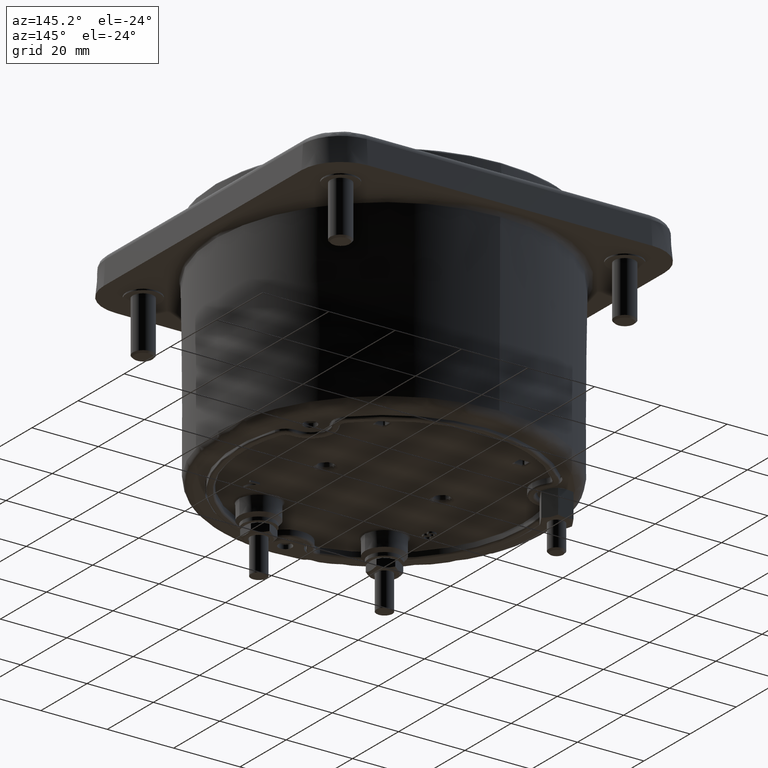
[diagram: clean part render]
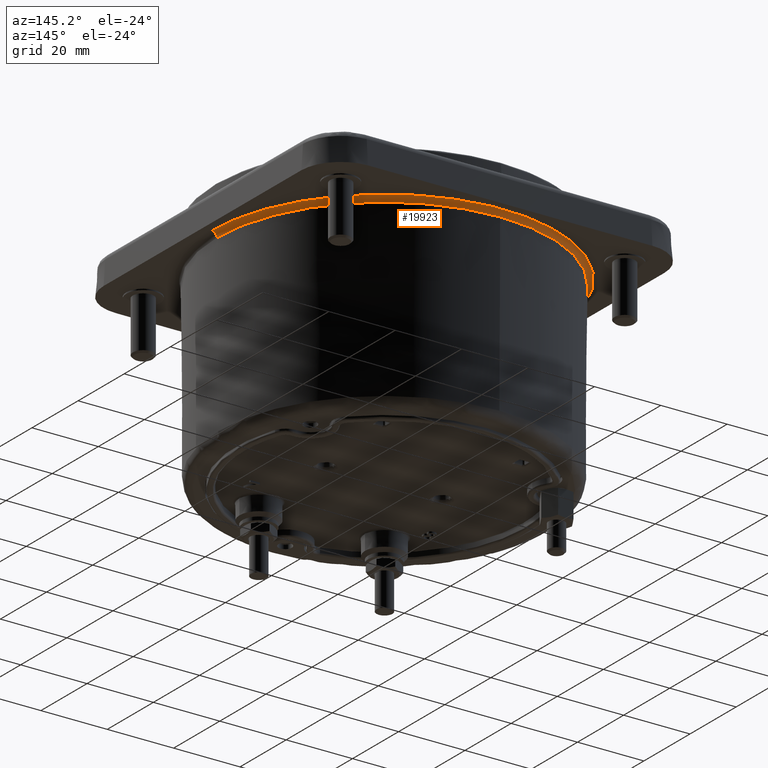
[diagram: same view with one face highlighted and labeled with its STEP entity id]
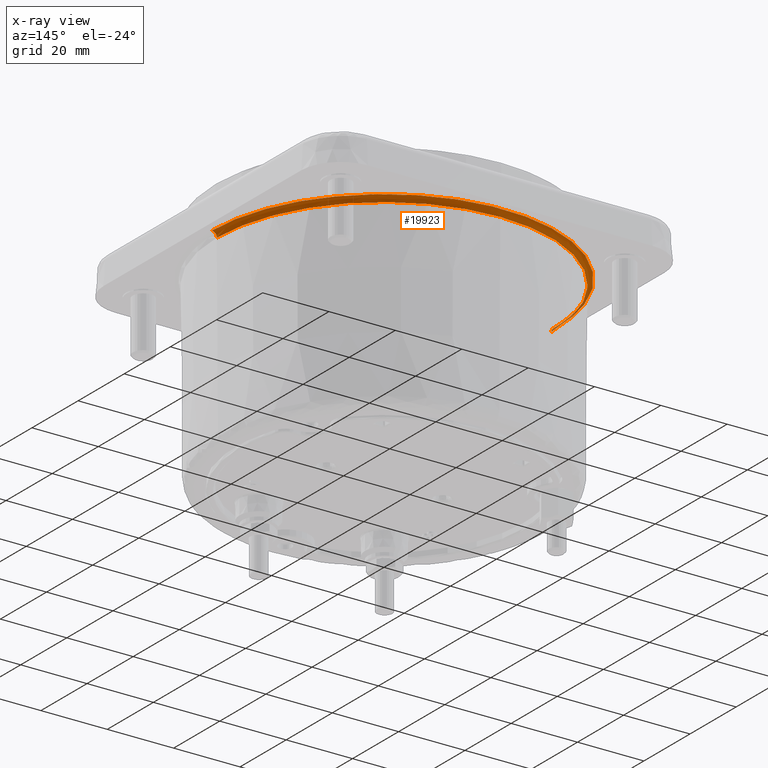
[diagram: x-ray of the same camera — body ghosted, the highlighted face saturated]
A machine part, auxiliary view. The second image highlights one B-rep face of the part: STEP entity #19923.
The next image is the same camera in x-ray: the body ghosted, the highlighted face saturated — about 2% of this face is hidden behind the body in this view.
In plain terms, the highlighted face is a freeform B-spline surface patch.
Its self-contained STEP definition (entity closure, byte-faithful):
#49 = CARTESIAN_POINT ( 'NONE',  ( -2.008598685417853691, 0.3726887875046700493, 2.070110236220472189 ) ) ;
#59 = DIRECTION ( 'NONE',  ( -1.000000000000000000, -6.506283845020274466E-10, 0.000000000000000000 ) ) ;
#111 = CARTESIAN_POINT ( 'NONE',  ( -2.008485858200862673, 4.016971709809507907, 2.070110236220473077 ) ) ;
#149 = CARTESIAN_POINT ( 'NONE',  ( -1.896255371955353874, 0.7599903085829402549, 2.070110236220472189 ) ) ;
#249 = CARTESIAN_POINT ( 'NONE',  ( 2.026184992767981807, 0.2639833657178906057, 2.070110236220472189 ) ) ;
#420 = ORIENTED_EDGE ( 'NONE', *, *, #12275, .F. ) ;
#469 = CARTESIAN_POINT ( 'NONE',  ( 1.711088321330193063, 1.116040419668461237, 2.070110236220472189 ) ) ;
#546 = CARTESIAN_POINT ( 'NONE',  ( -2.042881472386144370, 4.085762938067176719, 2.070110236220472633 ) ) ;
#582 = CARTESIAN_POINT ( 'NONE',  ( 2.008964654954902507, 0.3707111310162305440, 2.070110236220472633 ) ) ;
#639 = VERTEX_POINT ( 'NONE', #20257 ) ;
#791 = CARTESIAN_POINT ( 'NONE',  ( -0.3678886186264974101, 2.009483410134052850, 2.070110236220472189 ) ) ;
#888 = CARTESIAN_POINT ( 'NONE',  ( -1.983827896406448188, -1.309943466930820863E-09, 2.011482268730736322 ) ) ;
#1185 = CARTESIAN_POINT ( 'NONE',  ( 1.130765448197810219, 1.701402250908114588, 2.070110236220472189 ) ) ;
#1375 = CARTESIAN_POINT ( 'NONE',  ( -1.092514872299909623, 1.726242185401335227, 2.070110236220472189 ) ) ;
#1481 = CARTESIAN_POINT ( 'NONE',  ( -1.110653324257439234, 1.714590005561490216, 2.070110236220472189 ) ) ;
#1801 = CARTESIAN_POINT ( 'NONE',  ( -1.923832779440136198, 0.6903791625160491385, 2.070110236220472189 ) ) ;
#1812 = CARTESIAN_POINT ( 'NONE',  ( -0.7442685582425531132, 1.902480896312931602, 2.070110236220472189 ) ) ;
#2006 = CARTESIAN_POINT ( 'NONE',  ( 1.900241300414043266, 0.7499681759425160799, 2.070110236220472189 ) ) ;
#2460 = CIRCLE ( 'NONE', #4916, 1.983827896406452851 ) ;
#2820 = CARTESIAN_POINT ( 'NONE',  ( 0.9710378116155181649, 1.799681934351596846, 2.070110236220472633 ) ) ;
#2971 = CIRCLE ( 'NONE', #6123, 0.05905511811023627516 ) ;
#3008 = CIRCLE ( 'NONE', #5805, 0.05905511811023627516 ) ;
#3012 = ORIENTED_EDGE ( 'NONE', *, *, #21252, .F. ) ;
#3015 = CARTESIAN_POINT ( 'NONE',  ( -1.701402250908744973, 1.130765448196786371, 2.070110236220473077 ) ) ;
#3023 = CARTESIAN_POINT ( 'NONE',  ( 1.219175707342406101, 1.639883210600492802, 2.070110236220472189 ) ) ;
#3159 = CARTESIAN_POINT ( 'NONE',  ( 0.1249387674007510635, 2.042880192836613595, 2.070110236220472189 ) ) ;
#3231 = CARTESIAN_POINT ( 'NONE',  ( -2.007446990985487734, 0.3788520813345559457, 2.070110236220471744 ) ) ;
#3242 = CARTESIAN_POINT ( 'NONE',  ( 0.7559844347400698217, 1.897855857671748803, 2.070110236220472633 ) ) ;
#3250 = EDGE_CURVE ( 'NONE', #13108, #639, #2460, .T. ) ;
#3344 = CARTESIAN_POINT ( 'NONE',  ( -0.6978737373666035193, 1.920113334218456425, 2.070110236220472633 ) ) ;
#3432 = CARTESIAN_POINT ( 'NONE',  ( -1.105221622685764959, 1.718104688079279185, 2.070110236220473077 ) ) ;
#3539 = CARTESIAN_POINT ( 'NONE',  ( 1.714590005561250186, 1.110653324258058738, 2.070110236220471744 ) ) ;
#3639 = EDGE_CURVE ( 'NONE', #6227, #639, #2971, .T. ) ;
#3645 = CARTESIAN_POINT ( 'NONE',  ( 1.974016218242611531, 0.5332552053223664768, 2.070110236220472189 ) ) ;
#3721 = CARTESIAN_POINT ( 'NONE',  ( 2.008485855548417298, 1.306775885527379837E-09, 2.070110236220473077 ) ) ;
#3756 = CARTESIAN_POINT ( 'NONE',  ( 1.742263465832802227, 1.066970251324247831, 2.070110236220472189 ) ) ;
#3829 = CARTESIAN_POINT ( 'NONE',  ( -2.042881469688265117, -1.348937260100741802E-09, 2.070110236220472633 ) ) ;
#3866 = CARTESIAN_POINT ( 'NONE',  ( 1.939430170090475691, 0.6433872527954787035, 2.070110236220472189 ) ) ;
#4198 = DIRECTION ( 'NONE',  ( 1.000000000000000000, 6.215758234642771035E-10, 1.377058966966231985E-15 ) ) ;
#4240 =( BOUNDED_SURFACE ( )  B_SPLINE_SURFACE ( 3, 3, ( 
 ( #3829, #546, #11898, #10045 ),
 ( #5044, #111, #18630, #3721 ),
 ( #18411, #10475, #6794, #10255 ),
 ( #16973, #8629, #7004, #13445 ) ),
 .UNSPECIFIED., .F., .F., .F. ) 
 B_SPLINE_SURFACE_WITH_KNOTS ( ( 4, 4 ),
 ( 4, 4 ),
 ( 0.000000000000000000, 1.000000000000000000 ),
 ( 0.000000000000000000, 1.000000000000000000 ),
 .UNSPECIFIED. ) 
 GEOMETRIC_REPRESENTATION_ITEM ( )  RATIONAL_B_SPLINE_SURFACE ( (
 ( 1.000000000000000000, 0.3333333333301046753, 0.3333333333301046753, 1.000000000000000000),
 ( 0.8064396365958953483, 0.2688132121960280507, 0.2688132121960280507, 0.8064396365958953483),
 ( 0.8064396365958953483, 0.2688132121960280507, 0.2688132121960280507, 0.8064396365958953483),
 ( 1.000000000000000000, 0.3333333333301046753, 0.3333333333301046753, 1.000000000000000000) ) ) 
 REPRESENTATION_ITEM ( '' )  SURFACE ( )  );
#4525 = CARTESIAN_POINT ( 'NONE',  ( 2.042881469688272222, 1.329156158074610405E-09, 2.070110236220472189 ) ) ;
#4565 = CARTESIAN_POINT ( 'NONE',  ( 1.121571604574870262, 1.707467909705373987, 2.070110236220473077 ) ) ;
#4694 = CARTESIAN_POINT ( 'NONE',  ( 0.2488762166883521365, 2.031511808131441388, 2.070110236220473077 ) ) ;
#4759 = CARTESIAN_POINT ( 'NONE',  ( -1.564954769524254052, 1.316454797502487839, 2.070110236220473077 ) ) ;
#4869 = CARTESIAN_POINT ( 'NONE',  ( -1.893845591454620836, 0.7659944184694260638, 2.070110236220473077 ) ) ;
#4915 = CARTESIAN_POINT ( 'NONE',  ( 0.3737647796329262584, 2.008398766474830843, 2.070110236220473077 ) ) ;
#4916 = AXIS2_PLACEMENT_3D ( 'NONE', #6859, #8489, #4198 ) ;
#5044 = CARTESIAN_POINT ( 'NONE',  ( -2.008485855548407528, -1.326225417460476470E-09, 2.070110236220473077 ) ) ;
#5086 = CARTESIAN_POINT ( 'NONE',  ( -1.747656180646432800, 1.060108662972744753, 2.070110236220473077 ) ) ;
#5115 = VERTEX_POINT ( 'NONE', #7357 ) ;
#5402 = CARTESIAN_POINT ( 'NONE',  ( 2.013594818917836093, 0.3448347633410340785, 2.070110236220473077 ) ) ;
#5516 = CARTESIAN_POINT ( 'NONE',  ( 1.902480896313037517, 0.7442685582423163027, 2.070110236220472189 ) ) ;
#5660 = ORIENTED_EDGE ( 'NONE', *, *, #14568, .F. ) ;
#5805 = AXIS2_PLACEMENT_3D ( 'NONE', #10101, #8576, #59 ) ;
#5919 = DIRECTION ( 'NONE',  ( 6.506285069667078454E-10, -1.000000000000000000, 0.000000000000000000 ) ) ;
#5947 = CARTESIAN_POINT ( 'NONE',  ( -0.2639833657265798772, 2.026184992766906223, 2.070110236220472189 ) ) ;
#6123 = AXIS2_PLACEMENT_3D ( 'NONE', #7669, #5919, #17643 ) ;
#6139 = CARTESIAN_POINT ( 'NONE',  ( 0.3859691339169316060, 2.006096597241254997, 2.070110236220472189 ) ) ;
#6161 = CIRCLE ( 'NONE', #13811, 1.983827896406452851 ) ;
#6227 = VERTEX_POINT ( 'NONE', #4525 ) ;
#6345 = CARTESIAN_POINT ( 'NONE',  ( 0.3788520813356723305, 2.007446990985192414, 2.070110236220472189 ) ) ;
#6556 = CARTESIAN_POINT ( 'NONE',  ( 0.3757999609763399418, 2.008018959206292475, 2.070110236220472633 ) ) ;
#6622 = CARTESIAN_POINT ( 'NONE',  ( -1.344819891864121653, 1.544248719458508168, 2.070110236220472189 ) ) ;
#6732 = CARTESIAN_POINT ( 'NONE',  ( -2.042881469769566749, 0.1249596658312170094, 2.070110236220472189 ) ) ;
#6794 = CARTESIAN_POINT ( 'NONE',  ( 1.984076680185401509, 3.968153366863694576, 2.045876983112523195 ) ) ;
#6836 = CARTESIAN_POINT ( 'NONE',  ( -1.799681934356939239, 0.9710378116077497124, 2.070110236220472189 ) ) ;
#6843 = CARTESIAN_POINT ( 'NONE',  ( 0.7799711020587158927, 1.888159406803889162, 2.070110236220471744 ) ) ;
#6859 = CARTESIAN_POINT ( 'NONE',  ( 4.755600987370747928E-15, 2.237929876409763545E-15, 2.011482268730736322 ) ) ;
#6933 = CARTESIAN_POINT ( 'NONE',  ( 2.011224428577082612, 0.3582853737923294424, 2.070110236220472189 ) ) ;
#6992 = ORIENTED_EDGE ( 'NONE', *, *, #3639, .T. ) ;
#7004 = CARTESIAN_POINT ( 'NONE',  ( 1.983827893824907651, 3.967655794141890624, 2.011482268730736322 ) ) ;
#7262 = CARTESIAN_POINT ( 'NONE',  ( 1.900968610835624517, 0.7481225039804052512, 2.070110236220472189 ) ) ;
#7357 = CARTESIAN_POINT ( 'NONE',  ( -2.042881469688264673, -1.329153877629970610E-09, 2.070110236220472189 ) ) ;
#7461 = CARTESIAN_POINT ( 'NONE',  ( -0.3707111310161931850, 2.008964654954908724, 2.070110236220472189 ) ) ;
#7669 = CARTESIAN_POINT ( 'NONE',  ( 2.042881469688273555, 1.329159158463107903E-09, 2.011055118110236517 ) ) ;
#7845 = CARTESIAN_POINT ( 'NONE',  ( 0.8077928446445483690, 1.876533583579392150, 2.070110236220472189 ) ) ;
#7978 = CARTESIAN_POINT ( 'NONE',  ( 0.4285437248700156299, 1.997551800392516785, 2.070110236220472633 ) ) ;
#8053 = CARTESIAN_POINT ( 'NONE',  ( 1.143583545518305877, 1.692844864900662660, 2.070110236220472189 ) ) ;
#8150 = CARTESIAN_POINT ( 'NONE',  ( -1.897855857671926882, 0.7559844347397906006, 2.070110236220472189 ) ) ;
#8192 = CARTESIAN_POINT ( 'NONE',  ( 0.4849692473822045380, 1.984978912900581927, 2.070110236220472189 ) ) ;
#8360 = CARTESIAN_POINT ( 'NONE',  ( -2.031513085348501502, 0.2488693151521731151, 2.070110236220472633 ) ) ;
#8371 = CARTESIAN_POINT ( 'NONE',  ( -0.6433872527980785128, 1.939430170089417649, 2.070110236220472189 ) ) ;
#8467 = CARTESIAN_POINT ( 'NONE',  ( -1.066970251320402019, 1.742263465834327452, 2.070110236220472189 ) ) ;
#8489 = DIRECTION ( 'NONE',  ( -0.000000000000000000, -0.000000000000000000, -1.000000000000000000 ) ) ;
#8576 = DIRECTION ( 'NONE',  ( -6.506283845020279635E-10, 1.000000000000000000, 0.000000000000000000 ) ) ;
#8629 = CARTESIAN_POINT ( 'NONE',  ( -1.983827899026250563, 3.967655791541214949, 2.011482268730736322 ) ) ;
#8662 = CARTESIAN_POINT ( 'NONE',  ( 1.874038972726748797, 0.8161558320118241783, 2.070110236220473077 ) ) ;
#8775 = CARTESIAN_POINT ( 'NONE',  ( 2.009483410134108805, 0.3678886186260942881, 2.070110236220472189 ) ) ;
#8876 = CARTESIAN_POINT ( 'NONE',  ( 1.544248719448939822, 1.344819891870079998, 2.070110236220473077 ) ) ;
#8888 = CARTESIAN_POINT ( 'NONE',  ( -0.7499681759426658489, 1.900241300413973988, 2.070110236220472189 ) ) ;
#9073 = CARTESIAN_POINT ( 'NONE',  ( -0.5332552053258344804, 1.974016218241201770, 2.070110236220472633 ) ) ;
#9474 = CARTESIAN_POINT ( 'NONE',  ( 0.8629098314527804403, 1.852268121433132686, 2.070110236220472189 ) ) ;
#9667 = CARTESIAN_POINT ( 'NONE',  ( -2.006096597241845636, 0.3859691339147403033, 2.070110236220472189 ) ) ;
#9878 = CARTESIAN_POINT ( 'NONE',  ( -1.707467909705557174, 1.121571604574564729, 2.070110236220472189 ) ) ;
#10045 = CARTESIAN_POINT ( 'NONE',  ( 2.042881469688274443, 1.329154575437857217E-09, 2.070110236220472633 ) ) ;
#10085 = CARTESIAN_POINT ( 'NONE',  ( -1.675499044565825546, 1.169031679855782269, 2.070110236220472189 ) ) ;
#10101 = CARTESIAN_POINT ( 'NONE',  ( -2.042881469688263785, -1.329154432422529730E-09, 2.011055118110236517 ) ) ;
#10255 = CARTESIAN_POINT ( 'NONE',  ( 1.984076682767186517, 1.290894636644271632E-09, 2.045876983112522751 ) ) ;
#10294 = CARTESIAN_POINT ( 'NONE',  ( 1.909948963334545891, 0.7249720948581591662, 2.070110236220472189 ) ) ;
#10401 = CARTESIAN_POINT ( 'NONE',  ( 2.042881469688272222, 1.329156158074610405E-09, 2.070110236220472189 ) ) ;
#10475 = CARTESIAN_POINT ( 'NONE',  ( -1.984076685387397454, 3.968153364262690275, 2.045876983112523195 ) ) ;
#10513 = CARTESIAN_POINT ( 'NONE',  ( 1.394678649431126738, 1.494393066040117679, 2.070110236220472189 ) ) ;
#10658 = VERTEX_POINT ( 'NONE', #888 ) ;
#10949 = CARTESIAN_POINT ( 'NONE',  ( -0.3179124374555990507, 2.018102432713798411, 2.070110236220472189 ) ) ;
#11114 = EDGE_LOOP ( 'NONE', ( #5660, #6992, #19881, #420, #3012 ) ) ;
#11135 = CARTESIAN_POINT ( 'NONE',  ( 0.3726887335864224604, 2.008598695396123013, 2.070110236220472189 ) ) ;
#11243 = CARTESIAN_POINT ( 'NONE',  ( 0.6903791625263809850, 1.923832779437304907, 2.070110236220472633 ) ) ;
#11296 = CARTESIAN_POINT ( 'NONE',  ( -2.042881469688264673, -1.329153877629970610E-09, 2.070110236220472189 ) ) ;
#11410 = CARTESIAN_POINT ( 'NONE',  ( 1.119690164146124323, 1.708702197063316053, 2.070110236220473077 ) ) ;
#11659 = CARTESIAN_POINT ( 'NONE',  ( -0.06246938569410279141, 2.042882108114094653, 2.070110236220472633 ) ) ;
#11724 = CARTESIAN_POINT ( 'NONE',  ( -1.116040419668409944, 1.711088321330176631, 2.070110236220472189 ) ) ;
#11823 = CARTESIAN_POINT ( 'NONE',  ( 2.018102432714430794, 0.3179124374505328254, 2.070110236220472189 ) ) ;
#11898 = CARTESIAN_POINT ( 'NONE',  ( 2.042881467029969755, 4.085762940745269134, 2.070110236220472633 ) ) ;
#12040 = CARTESIAN_POINT ( 'NONE',  ( 1.773291169853209226, 1.015356528536791814, 2.070110236220471744 ) ) ;
#12092 = DIRECTION ( 'NONE',  ( -0.000000000000000000, -0.000000000000000000, -1.000000000000000000 ) ) ;
#12115 = FACE_OUTER_BOUND ( 'NONE', #11114, .T. ) ;
#12148 = CARTESIAN_POINT ( 'NONE',  ( 2.042882108114913109, 0.06246938568748307968, 2.070110236220471744 ) ) ;
#12275 = EDGE_CURVE ( 'NONE', #10658, #13108, #6161, .T. ) ;
#12703 = CARTESIAN_POINT ( 'NONE',  ( 5.023682837251794677E-15, 1.983827896406455071, 2.011482268730736322 ) ) ;
#13054 = CARTESIAN_POINT ( 'NONE',  ( -1.114271336728845485, 1.712240843068414620, 2.070110236220472189 ) ) ;
#13108 = VERTEX_POINT ( 'NONE', #12703 ) ;
#13165 = CARTESIAN_POINT ( 'NONE',  ( -1.708702197063218353, 1.119690164146253775, 2.070110236220472189 ) ) ;
#13272 = CARTESIAN_POINT ( 'NONE',  ( -2.008018959206457676, 0.3757999609756976223, 2.070110236220472189 ) ) ;
#13378 = CARTESIAN_POINT ( 'NONE',  ( -1.639883210604393682, 1.219175707336111358, 2.070110236220472633 ) ) ;
#13445 = CARTESIAN_POINT ( 'NONE',  ( 1.983827896406368252, 1.290732769703909130E-09, 2.011482268730736767 ) ) ;
#13486 = CARTESIAN_POINT ( 'NONE',  ( -1.984978912904302062, 0.4849692473686476601, 2.070110236220472189 ) ) ;
#13811 = AXIS2_PLACEMENT_3D ( 'NONE', #17166, #12092, #18926 ) ;
#14358 = CARTESIAN_POINT ( 'NONE',  ( -0.3582853737937266025, 2.011224428576901424, 2.070110236220472189 ) ) ;
#14470 = CARTESIAN_POINT ( 'NONE',  ( -0.3650080408951944522, 2.010010087546000079, 2.070110236220471744 ) ) ;
#14568 = EDGE_CURVE ( 'NONE', #6227, #5115, #17927, .T. ) ;
#14710 = CARTESIAN_POINT ( 'NONE',  ( -1.692844864901881685, 1.143583545516333233, 2.070110236220472633 ) ) ;
#14928 = CARTESIAN_POINT ( 'NONE',  ( -1.997551800394681276, 0.4285437248621059569, 2.070110236220471744 ) ) ;
#15039 = CARTESIAN_POINT ( 'NONE',  ( -2.003332604842373410, 0.4001849927131438389, 2.070110236220472189 ) ) ;
#15145 = CARTESIAN_POINT ( 'NONE',  ( -1.494393066043087526, 1.394678649426327466, 2.070110236220472189 ) ) ;
#15349 = CARTESIAN_POINT ( 'NONE',  ( 1.831287150517390216, 0.9100311596338412912, 2.070110236220472189 ) ) ;
#15466 = CARTESIAN_POINT ( 'NONE',  ( 1.718104688078858855, 1.105221622686833438, 2.070110236220472633 ) ) ;
#15778 = CARTESIAN_POINT ( 'NONE',  ( -0.3698088781557697380, 2.009130903961297232, 2.070110236220472189 ) ) ;
#16052 = CARTESIAN_POINT ( 'NONE',  ( 1.060108662977189420, 1.747656180643378354, 2.070110236220472189 ) ) ;
#16367 = CARTESIAN_POINT ( 'NONE',  ( -0.9100311596250574286, 1.831287150520885865, 2.070110236220472189 ) ) ;
#16409 = CARTESIAN_POINT ( 'NONE',  ( 0.4001849927173825039, 2.003332604841217446, 2.070110236220473077 ) ) ;
#16579 = CARTESIAN_POINT ( 'NONE',  ( -1.015356528530201752, 1.773291169855829130, 2.070110236220472189 ) ) ;
#16690 = CARTESIAN_POINT ( 'NONE',  ( -2.008398766474908559, 0.3737647796326012961, 2.070110236220472189 ) ) ;
#16798 = CARTESIAN_POINT ( 'NONE',  ( -1.876533583581720510, 0.8077928446411455354, 2.070110236220472189 ) ) ;
#16811 = CARTESIAN_POINT ( 'NONE',  ( -0.7384850524071741029, 1.904740289654892615, 2.070110236220472189 ) ) ;
#16901 = CARTESIAN_POINT ( 'NONE',  ( 1.712240843068295382, 1.114271336729161677, 2.070110236220472189 ) ) ;
#16913 = CARTESIAN_POINT ( 'NONE',  ( 0.7659944184703710857, 1.893845591453981569, 2.070110236220472189 ) ) ;
#16973 = CARTESIAN_POINT ( 'NONE',  ( -1.983827896406358704, -1.309943466930761926E-09, 2.011482268730736767 ) ) ;
#17009 = CARTESIAN_POINT ( 'NONE',  ( 2.038619442716532504, 0.1557875424460390956, 2.070110236220472189 ) ) ;
#17116 = CARTESIAN_POINT ( 'NONE',  ( 1.904740289655071139, 0.7384850524067589905, 2.070110236220472189 ) ) ;
#17166 = CARTESIAN_POINT ( 'NONE',  ( 4.755600987370747928E-15, 2.237929876409763545E-15, 2.011482268730736322 ) ) ;
#17643 = DIRECTION ( 'NONE',  ( 1.000000000000000000, 6.506285069667073284E-10, 0.000000000000000000 ) ) ;
#17669 = CARTESIAN_POINT ( 'NONE',  ( -0.3448347633437446325, 2.013594818917495921, 2.070110236220471744 ) ) ;
#17788 = CARTESIAN_POINT ( 'NONE',  ( -0.1557875424576269097, 2.038619442715101204, 2.070110236220473077 ) ) ;
#17829 = CARTESIAN_POINT ( 'NONE',  ( 1.316454797510877794, 1.564954769519051769, 2.070110236220472189 ) ) ;
#17927 = B_SPLINE_CURVE_WITH_KNOTS ( 'NONE', 3,
 ( #10401, #12148, #17009, #249, #11823, #5402, #6933, #20298, #8775, #20517, #582, #18663, #3645, #3866, #18773, #10294, #17116, #5516, #7262, #2006, #8662, #15349, #12040, #3756, #18558, #15466, #3539, #16901, #469, #18879, #8876, #10513, #17829, #3023, #19682, #8053, #1185, #19780, #4565, #11410, #16052, #2820, #9474, #7845, #6843, #16913, #18248, #3242, #21559, #11243, #17971, #8192, #7978, #16409, #6139, #6345, #6556, #4915, #11135, #4694, #3159, #11659, #17788, #5947, #10949, #17669, #14358, #14470, #791, #15778, #7461, #20831, #9073, #8371, #3344, #21635, #16811, #1812, #20696, #8888, #19769, #16367, #16579, #8467, #1375, #3432, #1481, #13054, #11724, #19878, #6622, #15145, #4759, #13378, #10085, #14710, #3015, #20089, #9878, #13165, #5086, #6836, #18453, #16798, #18236, #4869, #149, #8150, #20196, #1801, #18340, #13486, #14928, #15039, #9667, #3231, #13272, #16690, #49, #8360, #6732, #11296 ),
 .UNSPECIFIED., .F., .F.,
 ( 4, 1, 1, 1, 1, 1, 1, 2, 2, 1, 1, 1, 1, 1, 2, 2, 1, 1, 1, 1, 1, 2, 2, 2, 1, 1, 1, 1, 1, 2, 2, 1, 1, 1, 1, 1, 2, 2, 1, 1, 1, 1, 1, 1, 2, 2, 2, 1, 1, 1, 1, 1, 1, 2, 2, 1, 1, 1, 1, 1, 2, 2, 1, 1, 1, 1, 1, 2, 2, 2, 1, 1, 1, 1, 1, 2, 2, 1, 1, 1, 1, 1, 2, 2, 1, 1, 1, 1, 1, 1, 2, 2, 4 ),
 ( 0.5000000000000000000, 0.5156249999999975575, 0.5234374999999964473, 0.5273437499999957812, 0.5292968749999955591, 0.5302734374999953371, 0.5307617187499953371, 0.5310058593749952260, 0.5312499999999952260, 0.5468749999999931166, 0.5546874999999921174, 0.5585937499999915623, 0.5605468749999913403, 0.5615234374999912292, 0.5620117187499911182, 0.5624999999999911182, 0.5781249999999895639, 0.5859374999999887867, 0.5898437499999884537, 0.5917968749999882316, 0.5927734374999881206, 0.5932617187499880096, 0.5937499999999880096, 0.6249999999999856781, 0.6406249999999844569, 0.6484374999999839018, 0.6523437499999835687, 0.6542968749999833467, 0.6552734374999833467, 0.6557617187499832356, 0.6562499999999832356, 0.6718749999999824585, 0.6796874999999821254, 0.6835937499999819034, 0.6855468749999817923, 0.6865234374999817923, 0.6870117187499817923, 0.6874999999999816813, 0.7031249999999813483, 0.7109374999999811262, 0.7148437499999810152, 0.7167968749999809042, 0.7177734374999809042, 0.7182617187499809042, 0.7185058593749810152, 0.7187499999999810152, 0.7499999999999815703, 0.7656249999999817923, 0.7734374999999820144, 0.7773437499999820144, 0.7792968749999820144, 0.7802734374999820144, 0.7807617187499821254, 0.7810058593749821254, 0.7812499999999822364, 0.7968749999999829026, 0.8046874999999831246, 0.8085937499999833467, 0.8105468749999833467, 0.8115234374999833467, 0.8120117187499834577, 0.8124999999999834577, 0.8281249999999851230, 0.8359374999999857891, 0.8398437499999862332, 0.8417968749999864553, 0.8427734374999865663, 0.8432617187499866773, 0.8437499999999866773, 0.8749999999999902300, 0.8906249999999920064, 0.8984374999999930056, 0.9023437499999935607, 0.9042968749999937828, 0.9052734374999937828, 0.9057617187499940048, 0.9062499999999940048, 0.9218749999999956701, 0.9296874999999964473, 0.9335937499999968914, 0.9355468749999971134, 0.9365234374999971134, 0.9370117187499972244, 0.9374999999999972244, 0.9531249999999980016, 0.9609374999999983347, 0.9648437499999984457, 0.9667968749999986677, 0.9677734374999986677, 0.9682617187499986677, 0.9685058593749986677, 0.9687499999999986677, 1.000000000000000000 ),
 .UNSPECIFIED. ) ;
#17971 = CARTESIAN_POINT ( 'NONE',  ( 0.5966525252342758101, 1.955788023538609366, 2.070110236220472633 ) ) ;
#18236 = CARTESIAN_POINT ( 'NONE',  ( -1.888159406805133500, 0.7799711020568917963, 2.070110236220472189 ) ) ;
#18248 = CARTESIAN_POINT ( 'NONE',  ( 0.7599903085834883720, 1.896255371954990165, 2.070110236220472189 ) ) ;
#18340 = CARTESIAN_POINT ( 'NONE',  ( -1.955788023543572951, 0.5966525252162009352, 2.070110236220472189 ) ) ;
#18411 = CARTESIAN_POINT ( 'NONE',  ( -1.984076682767176969, -1.310107743592750424E-09, 2.045876983112522751 ) ) ;
#18453 = CARTESIAN_POINT ( 'NONE',  ( -1.852268121437137482, 0.8629098314469527686, 2.070110236220472189 ) ) ;
#18558 = CARTESIAN_POINT ( 'NONE',  ( 1.726242185400520546, 1.092514872301971751, 2.070110236220472189 ) ) ;
#18630 = CARTESIAN_POINT ( 'NONE',  ( 2.008485852934870142, 4.016971712442510167, 2.070110236220473077 ) ) ;
#18663 = CARTESIAN_POINT ( 'NONE',  ( 1.996722619074735361, 0.4368693160587457380, 2.070110236220473077 ) ) ;
#18773 = CARTESIAN_POINT ( 'NONE',  ( 1.920113334219077039, 0.6978737373650896192, 2.070110236220472189 ) ) ;
#18879 = CARTESIAN_POINT ( 'NONE',  ( 1.632717692846356705, 1.235916453038527596, 2.070110236220473077 ) ) ;
#18926 = DIRECTION ( 'NONE',  ( 1.000000000000000000, 6.506301608588673638E-10, 1.377058966966231985E-15 ) ) ;
#19682 = CARTESIAN_POINT ( 'NONE',  ( 1.169031679859457995, 1.675499044563550921, 2.070110236220472189 ) ) ;
#19769 = CARTESIAN_POINT ( 'NONE',  ( -0.8161558320068010852, 1.874038972728743646, 2.070110236220473077 ) ) ;
#19780 = CARTESIAN_POINT ( 'NONE',  ( 1.125251828599758364, 1.705044946876787426, 2.070110236220472189 ) ) ;
#19878 = CARTESIAN_POINT ( 'NONE',  ( -1.235916453041483898, 1.632717692847027058, 2.070110236220471744 ) ) ;
#19881 = ORIENTED_EDGE ( 'NONE', *, *, #3250, .F. ) ;
#19923 = ADVANCED_FACE ( 'NONE', ( #12115 ), #4240, .F. ) ;
#20089 = CARTESIAN_POINT ( 'NONE',  ( -1.705044946877151135, 1.125251828599162618, 2.070110236220472189 ) ) ;
#20196 = CARTESIAN_POINT ( 'NONE',  ( -1.898685244963330243, 0.7538986943153503928, 2.070110236220472189 ) ) ;
#20257 = CARTESIAN_POINT ( 'NONE',  ( 1.983827896406457514, 1.309948189355410421E-09, 2.011482268730736322 ) ) ;
#20298 = CARTESIAN_POINT ( 'NONE',  ( 2.010010087546094226, 0.3650080408944868515, 2.070110236220472189 ) ) ;
#20517 = CARTESIAN_POINT ( 'NONE',  ( 2.009130903961328318, 0.3698088781555704530, 2.070110236220473077 ) ) ;
#20696 = CARTESIAN_POINT ( 'NONE',  ( -0.7481225039805218247, 1.900968610835566563, 2.070110236220471744 ) ) ;
#20831 = CARTESIAN_POINT ( 'NONE',  ( -0.4368693160607245440, 1.996722619073927341, 2.070110236220472189 ) ) ;
#21252 = EDGE_CURVE ( 'NONE', #5115, #10658, #3008, .T. ) ;
#21559 = CARTESIAN_POINT ( 'NONE',  ( 0.7538986943150325359, 1.898685244963429941, 2.070110236220472189 ) ) ;
#21635 = CARTESIAN_POINT ( 'NONE',  ( -0.7249720948589662983, 1.909948963334210825, 2.070110236220472189 ) ) ;